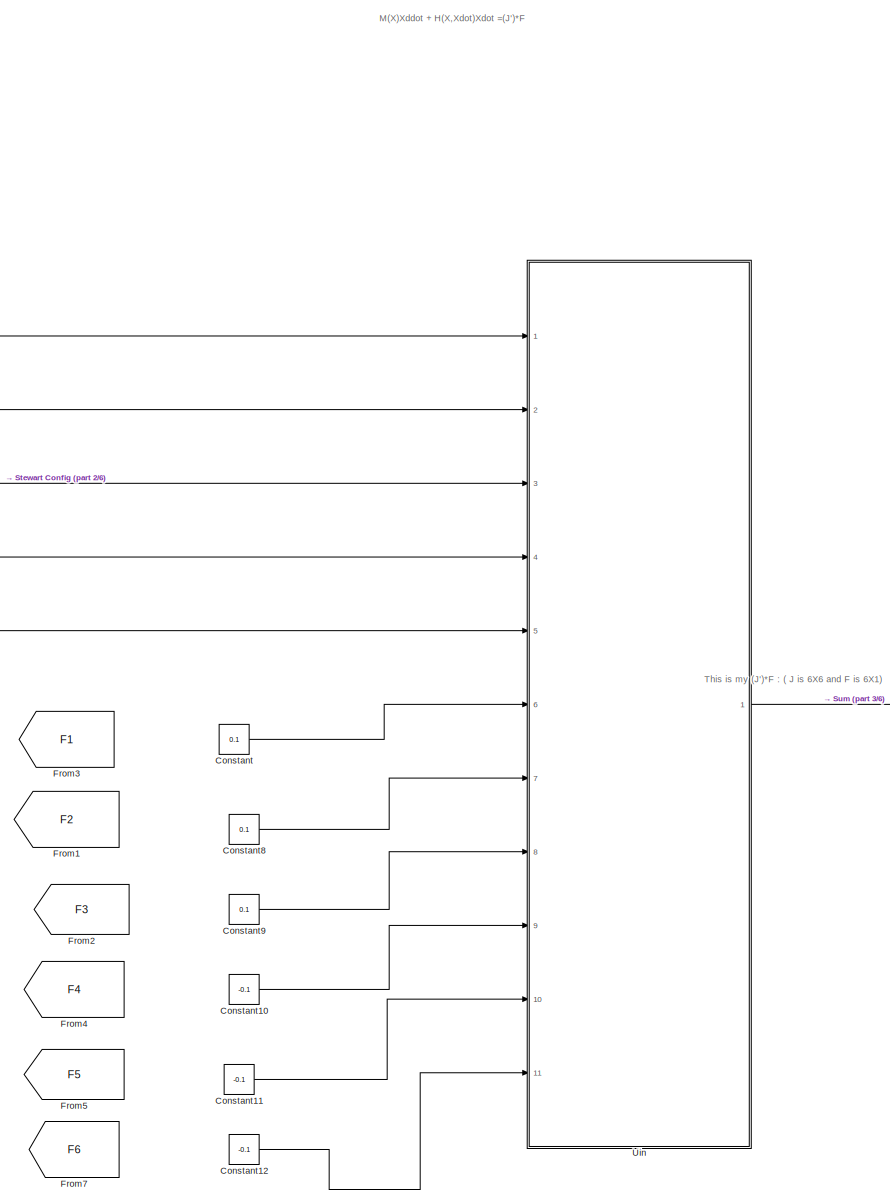
[diagram: root canvas - part 1/6, top center region]
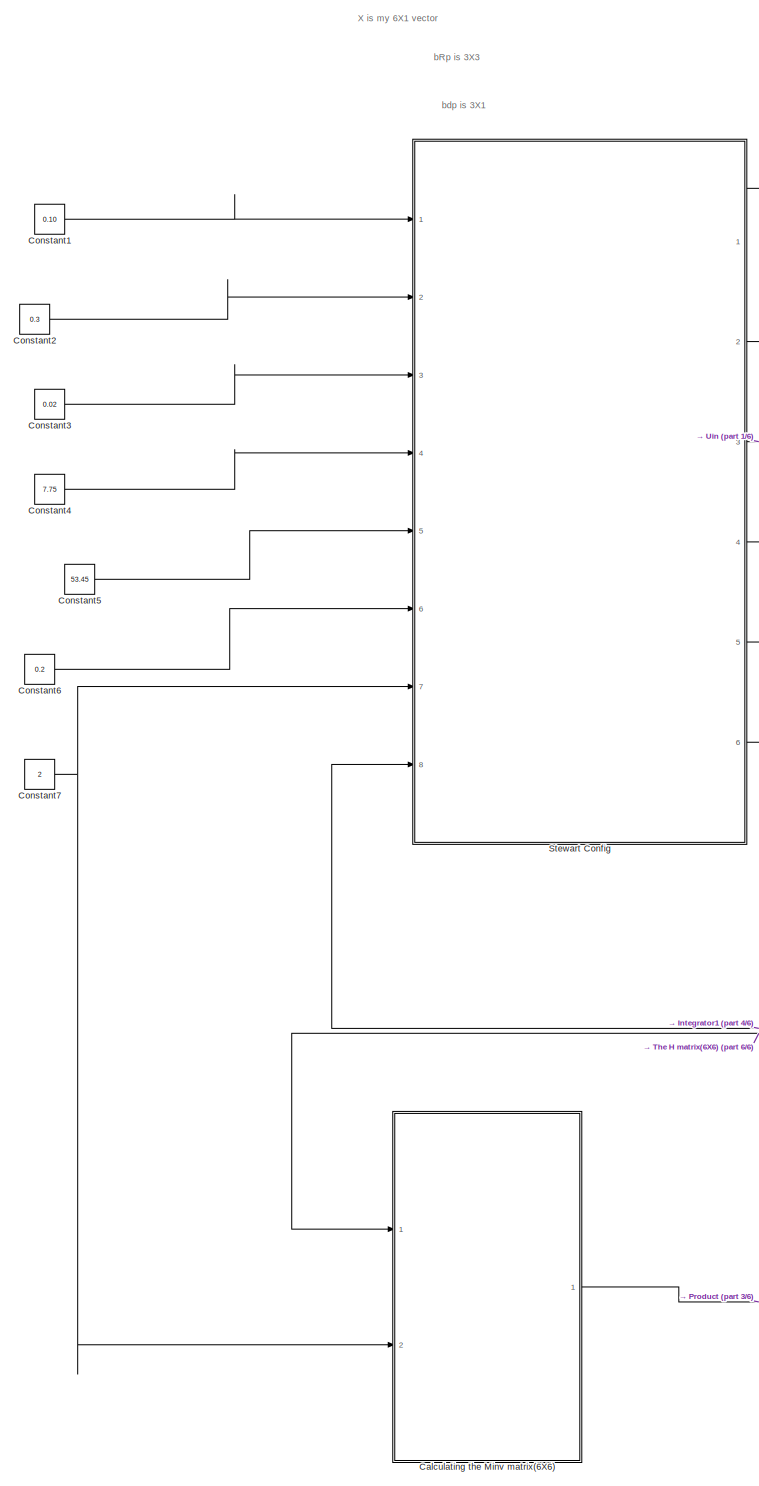
[diagram: root canvas - part 2/6, middle left region]
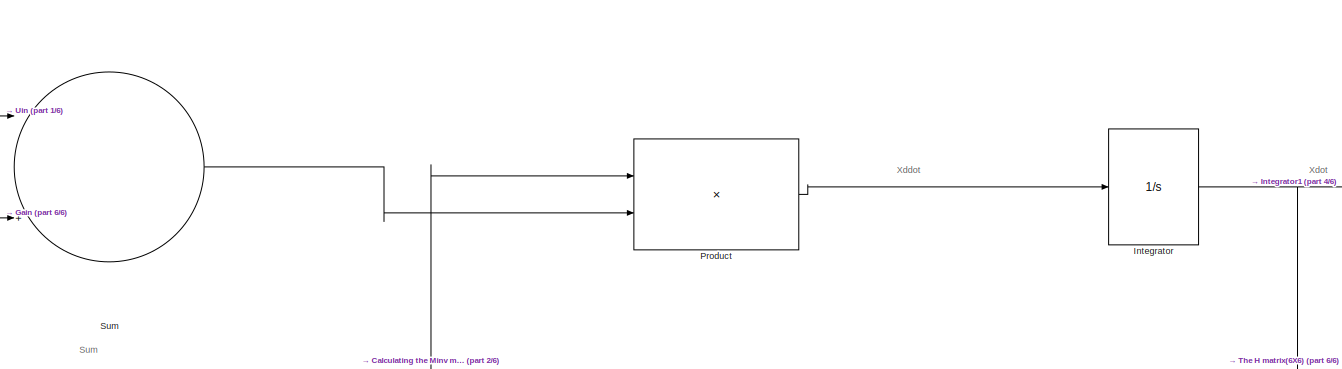
[diagram: root canvas - part 3/6, top right region]
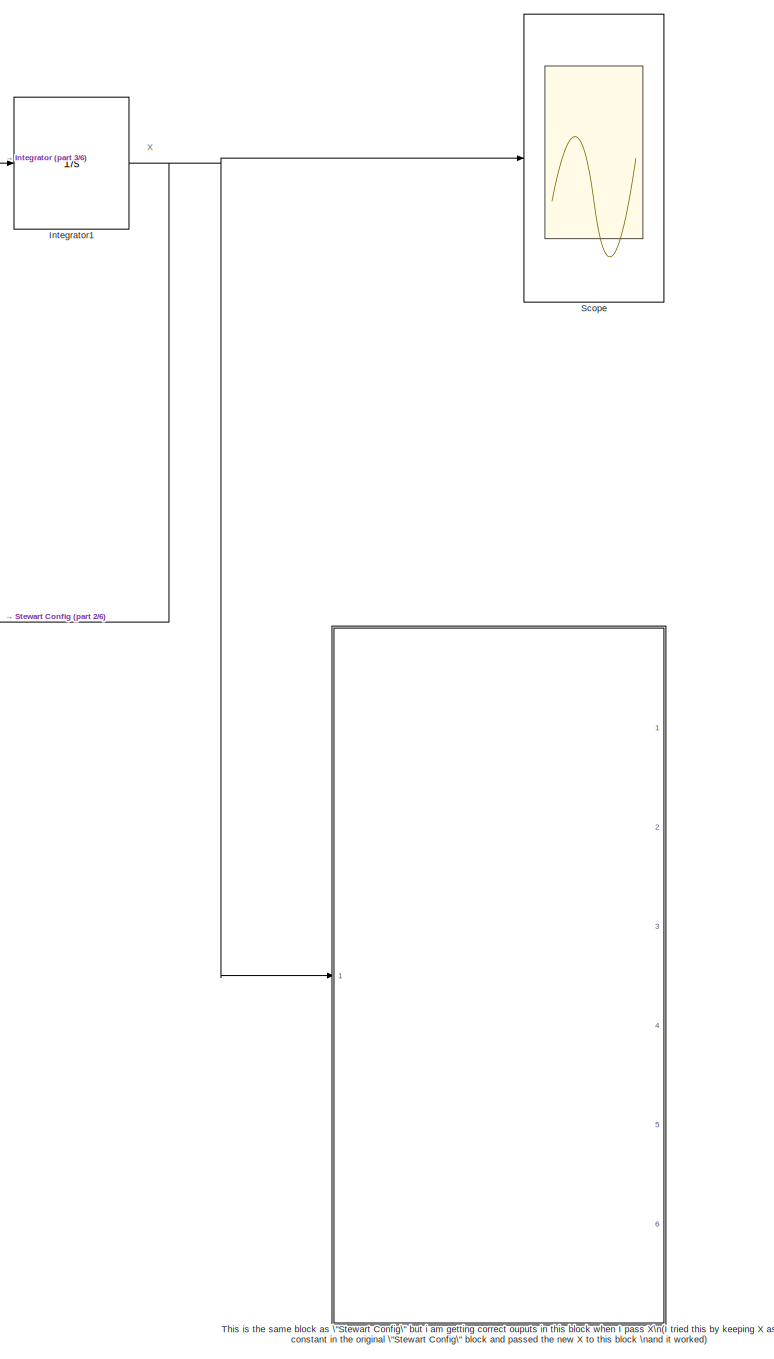
[diagram: root canvas - part 4/6, middle right region]
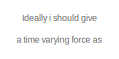
[diagram: root canvas - part 5/6, top left region]
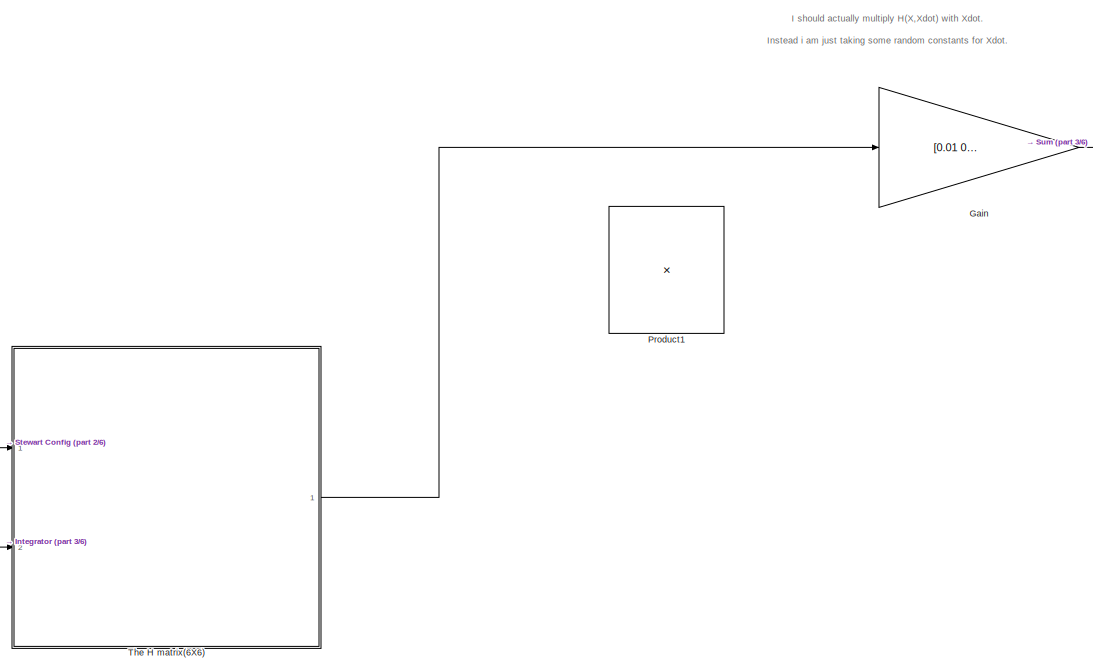
[diagram: root canvas - part 6/6, bottom center region]
MODEL SPDynamicsSreeranj
KIND model
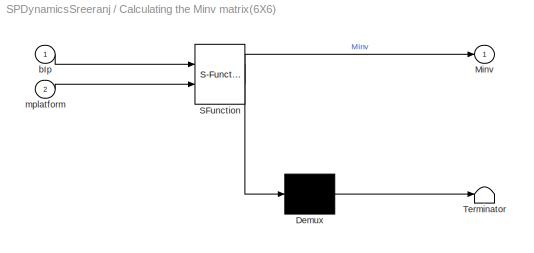
BLOCK [SubSystem] Calculating the Minv  matrix(6X6)
  ErrorFcn = Stateflow.Translate.translate
  PermitHierarchicalResolution = ExplicitOnly
  Ports = [2, 1]
  RequestExecContextInheritance = off
  SFBlockType = MATLAB Function
  SID = 1
  TreatAsAtomicUnit = on
BLOCK [Demux] Calculating the Minv  matrix(6X6)/ Demux 
  Outputs = 1
  Ports = [1, 1]
  SID = 1::17
BLOCK [S-Function] Calculating the Minv  matrix(6X6)/ SFunction 
  EnableBusSupport = on
  FunctionName = sf_sfun
  PortCounts = [2 2]
  Ports = [2, 2]
  SID = 1::16
  Tag = Stateflow S-Function SPDynamicsSreeranj 4
BLOCK [Terminator] Calculating the Minv  matrix(6X6)/ Terminator 
  SID = 1::18
BLOCK [Outport] Calculating the Minv  matrix(6X6)/Minv
  IconDisplay = Port number
  SID = 1::5
BLOCK [Inport] Calculating the Minv  matrix(6X6)/bIp
  IconDisplay = Port number
  SID = 1::19
BLOCK [Inport] Calculating the Minv  matrix(6X6)/mplatform
  IconDisplay = Port number
  Port = 2
  SID = 1::1
BLOCK [Constant] Constant
  SID = 2
  Value = 0.1
BLOCK [Constant] Constant1
  SID = 3
  Value = 0.10
BLOCK [Constant] Constant10
  SID = 4
  Value = -0.1
BLOCK [Constant] Constant11
  SID = 5
  Value = -0.1
BLOCK [Constant] Constant12
  SID = 6
  Value = -0.1
BLOCK [Constant] Constant2
  SID = 7
  Value = 0.3
BLOCK [Constant] Constant3
  SID = 8
  Value = 0.02
BLOCK [Constant] Constant4
  SID = 9
  Value = 7.75
BLOCK [Constant] Constant5
  SID = 10
  Value = 53.45
BLOCK [Constant] Constant6
  SID = 11
  Value = 0.2
BLOCK [Constant] Constant7
  SID = 12
  Value = 2
BLOCK [Constant] Constant8
  SID = 13
  Value = 0.1
BLOCK [Constant] Constant9
  SID = 14
  Value = 0.1
BLOCK [From] From1
  CloseFcn = tagdialog Close
  GotoTag = F2
  SID = 35
BLOCK [From] From2
  CloseFcn = tagdialog Close
  GotoTag = F3
  SID = 36
BLOCK [From] From3
  CloseFcn = tagdialog Close
  GotoTag = F1
  SID = 37
BLOCK [From] From4
  CloseFcn = tagdialog Close
  GotoTag = F4
  SID = 38
BLOCK [From] From5
  CloseFcn = tagdialog Close
  GotoTag = F5
  SID = 39
BLOCK [From] From7
  CloseFcn = tagdialog Close
  GotoTag = F6
  SID = 40
BLOCK [Gain] Gain
  Gain = [0.01 0.00 0 0.1 0.05 0.15]'
  Multiplication = Matrix(u*K)
  OutDataTypeStr = Inherit: Inherit via internal rule
  ParamDataTypeStr = Inherit: Inherit via internal rule
  SID = 41
  SaturateOnIntegerOverflow = off
BLOCK [Integrator] Integrator
  Ports = [1, 1]
  SID = 42
BLOCK [Integrator] Integrator1
  Ports = [1, 1]
  SID = 43
BLOCK [Product] Product
  InputSameDT = off
  Multiplication = Matrix(*)
  OutDataTypeStr = Inherit: Inherit via internal rule
  Ports = [2, 1]
  RndMeth = Floor
  SID = 45
  SaturateOnIntegerOverflow = off
BLOCK [Product] Product1
  InputSameDT = off
  Multiplication = Matrix(*)
  OutDataTypeStr = Inherit: Inherit via internal rule
  Ports = [2, 1]
  RndMeth = Floor
  SID = 46
  SaturateOnIntegerOverflow = off
BLOCK [Scope] Scope
  Floating = off
  NumInputPorts = 1
  Ports = [1]
  SID = 173
  ShowLegends = off
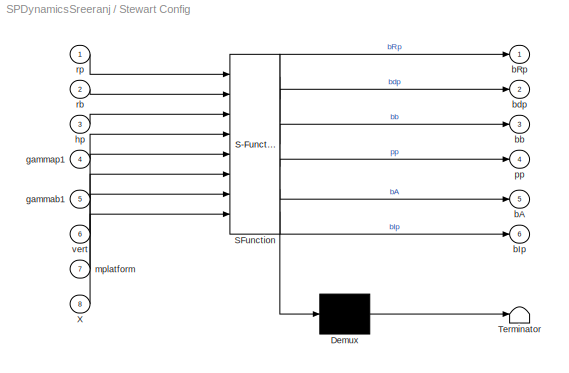
BLOCK [SubSystem] Stewart Config
  ErrorFcn = Stateflow.Translate.translate
  PermitHierarchicalResolution = ExplicitOnly
  Ports = [8, 6]
  RequestExecContextInheritance = off
  SFBlockType = MATLAB Function
  SID = 52
  TreatAsAtomicUnit = on
BLOCK [Demux] Stewart Config/ Demux 
  Outputs = 1
  Ports = [1, 1]
  SID = 52::17
BLOCK [S-Function] Stewart Config/ SFunction 
  EnableBusSupport = on
  FunctionName = sf_sfun
  PortCounts = [8 7]
  Ports = [8, 7]
  SID = 52::16
  Tag = Stateflow S-Function SPDynamicsSreeranj 1
BLOCK [Terminator] Stewart Config/ Terminator 
  SID = 52::18
BLOCK [Inport] Stewart Config/X
  IconDisplay = Port number
  Port = 8
  SID = 52::41
BLOCK [Outport] Stewart Config/bA
  IconDisplay = Port number
  Port = 5
  SID = 52::28
BLOCK [Outport] Stewart Config/bIp
  IconDisplay = Port number
  Port = 6
  SID = 52::30
BLOCK [Outport] Stewart Config/bRp
  IconDisplay = Port number
  SID = 52::5
BLOCK [Outport] Stewart Config/bb
  IconDisplay = Port number
  Port = 3
  SID = 52::26
BLOCK [Outport] Stewart Config/bdp
  IconDisplay = Port number
  Port = 2
  SID = 52::25
BLOCK [Inport] Stewart Config/gammab1
  IconDisplay = Port number
  Port = 5
  SID = 52::22
BLOCK [Inport] Stewart Config/gammap1
  IconDisplay = Port number
  Port = 4
  SID = 52::21
BLOCK [Inport] Stewart Config/hp
  IconDisplay = Port number
  Port = 3
  SID = 52::20
BLOCK [Inport] Stewart Config/mplatform
  IconDisplay = Port number
  Port = 7
  SID = 52::29
BLOCK [Outport] Stewart Config/pp
  IconDisplay = Port number
  Port = 4
  SID = 52::27
BLOCK [Inport] Stewart Config/rb
  IconDisplay = Port number
  Port = 2
  SID = 52::19
BLOCK [Inport] Stewart Config/rp
  IconDisplay = Port number
  SID = 52::1
BLOCK [Inport] Stewart Config/vert
  IconDisplay = Port number
  Port = 6
  SID = 52::23
BLOCK [Sum] Sum
  InputSameDT = off
  Inputs = |++
  OutDataTypeStr = Inherit: Inherit via internal rule
  Ports = [2, 1]
  SID = 53
  SaturateOnIntegerOverflow = off
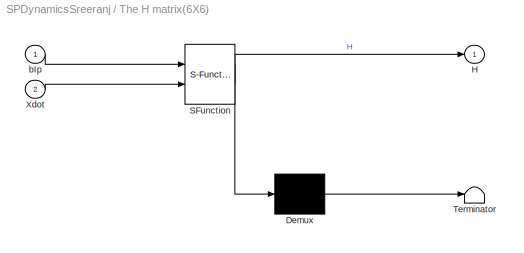
BLOCK [SubSystem] The H matrix(6X6)
  ErrorFcn = Stateflow.Translate.translate
  PermitHierarchicalResolution = ExplicitOnly
  Ports = [2, 1]
  RequestExecContextInheritance = off
  SFBlockType = MATLAB Function
  SID = 54
  TreatAsAtomicUnit = on
BLOCK [Demux] The H matrix(6X6)/ Demux 
  Outputs = 1
  Ports = [1, 1]
  SID = 54::17
BLOCK [S-Function] The H matrix(6X6)/ SFunction 
  EnableBusSupport = on
  FunctionName = sf_sfun
  PortCounts = [2 2]
  Ports = [2, 2]
  SID = 54::16
  Tag = Stateflow S-Function SPDynamicsSreeranj 5
BLOCK [Terminator] The H matrix(6X6)/ Terminator 
  SID = 54::18
BLOCK [Outport] The H matrix(6X6)/H
  IconDisplay = Port number
  SID = 54::5
BLOCK [Inport] The H matrix(6X6)/Xdot
  IconDisplay = Port number
  Port = 2
  SID = 54::27
BLOCK [Inport] The H matrix(6X6)/bIp
  IconDisplay = Port number
  SID = 54::1
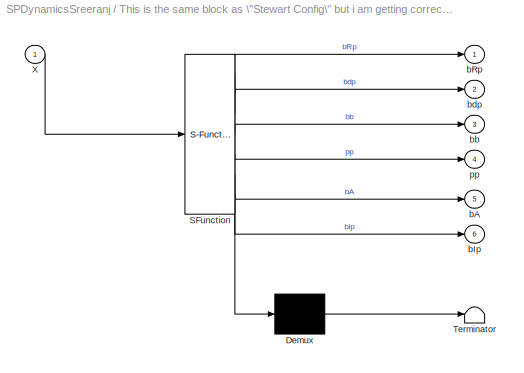
BLOCK [SubSystem] This is the same block as \"Stewart Config\" but i am getting correct ouputs in this block when I pass X\n(I tried this by keeping X as constant in the original \"Stewart Config\" block and passed the new X to this block \nand it worked)
  ErrorFcn = Stateflow.Translate.translate
  PermitHierarchicalResolution = ExplicitOnly
  Ports = [1, 6]
  RequestExecContextInheritance = off
  SFBlockType = MATLAB Function
  SID = 47
  TreatAsAtomicUnit = on
BLOCK [Demux] This is the same block as \"Stewart Config\" but i am getting correct ouputs in this block when I pass X\n(I tried this by keeping X as constant in the original \"Stewart Config\" block and passed the new X to this block \nand it worked)/ Demux 
  Outputs = 1
  Ports = [1, 1]
  SID = 47::17
BLOCK [S-Function] This is the same block as \"Stewart Config\" but i am getting correct ouputs in this block when I pass X\n(I tried this by keeping X as constant in the original \"Stewart Config\" block and passed the new X to this block \nand it worked)/ SFunction 
  EnableBusSupport = on
  FunctionName = sf_sfun
  PortCounts = [1 7]
  Ports = [1, 7]
  SID = 47::16
  Tag = Stateflow S-Function SPDynamicsSreeranj 8
BLOCK [Terminator] This is the same block as \"Stewart Config\" but i am getting correct ouputs in this block when I pass X\n(I tried this by keeping X as constant in the original \"Stewart Config\" block and passed the new X to this block \nand it worked)/ Terminator 
  SID = 47::18
BLOCK [Inport] This is the same block as \"Stewart Config\" but i am getting correct ouputs in this block when I pass X\n(I tried this by keeping X as constant in the original \"Stewart Config\" block and passed the new X to this block \nand it worked)/X
  IconDisplay = Port number
  SID = 47::37
BLOCK [Outport] This is the same block as \"Stewart Config\" but i am getting correct ouputs in this block when I pass X\n(I tried this by keeping X as constant in the original \"Stewart Config\" block and passed the new X to this block \nand it worked)/bA
  IconDisplay = Port number
  Port = 5
  SID = 47::28
BLOCK [Outport] This is the same block as \"Stewart Config\" but i am getting correct ouputs in this block when I pass X\n(I tried this by keeping X as constant in the original \"Stewart Config\" block and passed the new X to this block \nand it worked)/bIp
  IconDisplay = Port number
  Port = 6
  SID = 47::30
BLOCK [Outport] This is the same block as \"Stewart Config\" but i am getting correct ouputs in this block when I pass X\n(I tried this by keeping X as constant in the original \"Stewart Config\" block and passed the new X to this block \nand it worked)/bRp
  IconDisplay = Port number
  SID = 47::5
BLOCK [Outport] This is the same block as \"Stewart Config\" but i am getting correct ouputs in this block when I pass X\n(I tried this by keeping X as constant in the original \"Stewart Config\" block and passed the new X to this block \nand it worked)/bb
  IconDisplay = Port number
  Port = 3
  SID = 47::26
BLOCK [Outport] This is the same block as \"Stewart Config\" but i am getting correct ouputs in this block when I pass X\n(I tried this by keeping X as constant in the original \"Stewart Config\" block and passed the new X to this block \nand it worked)/bdp
  IconDisplay = Port number
  Port = 2
  SID = 47::25
BLOCK [Outport] This is the same block as \"Stewart Config\" but i am getting correct ouputs in this block when I pass X\n(I tried this by keeping X as constant in the original \"Stewart Config\" block and passed the new X to this block \nand it worked)/pp
  IconDisplay = Port number
  Port = 4
  SID = 47::27
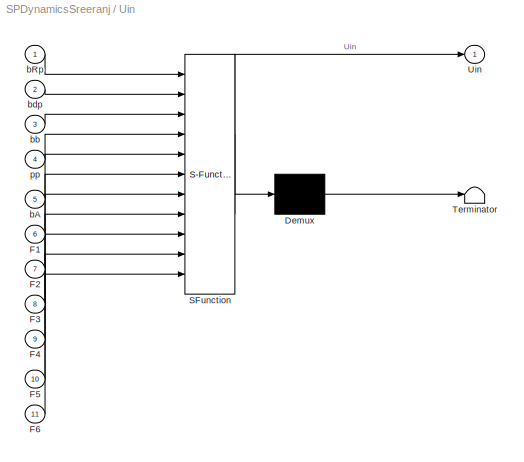
BLOCK [SubSystem] Uin
  ErrorFcn = Stateflow.Translate.translate
  PermitHierarchicalResolution = ExplicitOnly
  Ports = [11, 1]
  RequestExecContextInheritance = off
  SFBlockType = MATLAB Function
  SID = 55
  TreatAsAtomicUnit = on
BLOCK [Demux] Uin/ Demux 
  Outputs = 1
  Ports = [1, 1]
  SID = 55::17
BLOCK [S-Function] Uin/ SFunction 
  EnableBusSupport = on
  FunctionName = sf_sfun
  PortCounts = [11 2]
  Ports = [11, 2]
  SID = 55::16
  Tag = Stateflow S-Function SPDynamicsSreeranj 3
BLOCK [Terminator] Uin/ Terminator 
  SID = 55::18
BLOCK [Inport] Uin/F1
  IconDisplay = Port number
  Port = 6
  SID = 55::23
BLOCK [Inport] Uin/F2
  IconDisplay = Port number
  Port = 7
  SID = 55::24
BLOCK [Inport] Uin/F3
  IconDisplay = Port number
  Port = 8
  SID = 55::25
BLOCK [Inport] Uin/F4
  IconDisplay = Port number
  Port = 9
  SID = 55::26
BLOCK [Inport] Uin/F5
  IconDisplay = Port number
  Port = 10
  SID = 55::27
BLOCK [Inport] Uin/F6
  IconDisplay = Port number
  Port = 11
  SID = 55::28
BLOCK [Outport] Uin/Uin
  IconDisplay = Port number
  SID = 55::5
BLOCK [Inport] Uin/bA
  IconDisplay = Port number
  Port = 5
  SID = 55::22
BLOCK [Inport] Uin/bRp
  IconDisplay = Port number
  SID = 55::1
BLOCK [Inport] Uin/bb
  IconDisplay = Port number
  Port = 3
  SID = 55::20
BLOCK [Inport] Uin/bdp
  IconDisplay = Port number
  Port = 2
  SID = 55::21
BLOCK [Inport] Uin/pp
  IconDisplay = Port number
  Port = 4
  SID = 55::19
ANNOTATION (root): \n \n Ideally i should give \n a time varying force as \n input. I just kept it as a \n constant(0.1N) for the time \n being
ANNOTATION (root): \n \n I should actually multiply H(X,Xdot) with Xdot. \n Instead i am just taking some random constants for Xdot. \n I dont know if just giving a feedback from Xdot is going to work here.
ANNOTATION (root): \n \n M(X)Xddot + H(X,Xdot)Xdot =(J')*F
ANNOTATION (root): \n \n Sum
ANNOTATION (root): \n \n This is my (J')*F : ( J is 6X6 and F is 6X1)
ANNOTATION (root): \n \n X is my 6X1 vector
ANNOTATION (root): \n \n X
ANNOTATION (root): \n \n Xddot
ANNOTATION (root): \n \n Xdot
ANNOTATION (root): \n \n bRp is 3X3
ANNOTATION (root): \n \n bdp is 3X1
ANNOTATION (root): \n \n
LINE Calculating the Minv  matrix(6X6)/ Demux :1 -> Calculating the Minv  matrix(6X6)/ Terminator :1
LINE Calculating the Minv  matrix(6X6)/ SFunction :1 -> Calculating the Minv  matrix(6X6)/ Demux :1
LINE Calculating the Minv  matrix(6X6)/ SFunction :2 -> Calculating the Minv  matrix(6X6)/Minv:1
LINE Calculating the Minv  matrix(6X6)/bIp:1 -> Calculating the Minv  matrix(6X6)/ SFunction :1
LINE Calculating the Minv  matrix(6X6)/mplatform:1 -> Calculating the Minv  matrix(6X6)/ SFunction :2
LINE Calculating the Minv  matrix(6X6):1 -> Product:1
LINE Constant10:1 -> Uin:9
LINE Constant11:1 -> Uin:10
LINE Constant12:1 -> Uin:11
LINE Constant1:1 -> Stewart Config:1
LINE Constant2:1 -> Stewart Config:2
LINE Constant3:1 -> Stewart Config:3
LINE Constant4:1 -> Stewart Config:4
LINE Constant5:1 -> Stewart Config:5
LINE Constant6:1 -> Stewart Config:6
NET Constant7:1 -> Calculating the Minv  matrix(6X6):2, Stewart Config:7
LINE Constant8:1 -> Uin:7
LINE Constant9:1 -> Uin:8
LINE Constant:1 -> Uin:6
LINE Gain:1 -> Sum:2
NET Integrator1:1 -> Scope:1, Stewart Config:8, This is the same block as \"Stewart Config\" but i am getting correct ouputs in this block when I pass X\n(I tried this by keeping X as constant in the original \"Stewart Config\" block and passed the new X to this block \nand it worked):1
NET Integrator:1 -> Integrator1:1, The H matrix(6X6):2
LINE Product:1 -> Integrator:1
LINE Stewart Config/ Demux :1 -> Stewart Config/ Terminator :1
LINE Stewart Config/ SFunction :1 -> Stewart Config/ Demux :1
LINE Stewart Config/ SFunction :2 -> Stewart Config/bRp:1
LINE Stewart Config/ SFunction :3 -> Stewart Config/bdp:1
LINE Stewart Config/ SFunction :4 -> Stewart Config/bb:1
LINE Stewart Config/ SFunction :5 -> Stewart Config/pp:1
LINE Stewart Config/ SFunction :6 -> Stewart Config/bA:1
LINE Stewart Config/ SFunction :7 -> Stewart Config/bIp:1
LINE Stewart Config/X:1 -> Stewart Config/ SFunction :8
LINE Stewart Config/gammab1:1 -> Stewart Config/ SFunction :5
LINE Stewart Config/gammap1:1 -> Stewart Config/ SFunction :4
LINE Stewart Config/hp:1 -> Stewart Config/ SFunction :3
LINE Stewart Config/mplatform:1 -> Stewart Config/ SFunction :7
LINE Stewart Config/rb:1 -> Stewart Config/ SFunction :2
LINE Stewart Config/rp:1 -> Stewart Config/ SFunction :1
LINE Stewart Config/vert:1 -> Stewart Config/ SFunction :6
LINE Stewart Config:1 -> Uin:1
LINE Stewart Config:2 -> Uin:2
LINE Stewart Config:3 -> Uin:3
LINE Stewart Config:4 -> Uin:4
LINE Stewart Config:5 -> Uin:5
NET Stewart Config:6 -> Calculating the Minv  matrix(6X6):1, The H matrix(6X6):1
LINE Sum:1 -> Product:2
LINE The H matrix(6X6)/ Demux :1 -> The H matrix(6X6)/ Terminator :1
LINE The H matrix(6X6)/ SFunction :1 -> The H matrix(6X6)/ Demux :1
LINE The H matrix(6X6)/ SFunction :2 -> The H matrix(6X6)/H:1
LINE The H matrix(6X6)/Xdot:1 -> The H matrix(6X6)/ SFunction :2
LINE The H matrix(6X6)/bIp:1 -> The H matrix(6X6)/ SFunction :1
LINE The H matrix(6X6):1 -> Gain:1
LINE This is the same block as \"Stewart Config\" but i am getting correct ouputs in this block when I pass X\n(I tried this by keeping X as constant in the original \"Stewart Config\" block and passed the new X to this block \nand it worked)/ Demux :1 -> This is the same block as \"Stewart Config\" but i am getting correct ouputs in this block when I pass X\n(I tried this by keeping X as constant in the original \"Stewart Config\" block and passed the new X to this block \nand it worked)/ Terminator :1
LINE This is the same block as \"Stewart Config\" but i am getting correct ouputs in this block when I pass X\n(I tried this by keeping X as constant in the original \"Stewart Config\" block and passed the new X to this block \nand it worked)/ SFunction :1 -> This is the same block as \"Stewart Config\" but i am getting correct ouputs in this block when I pass X\n(I tried this by keeping X as constant in the original \"Stewart Config\" block and passed the new X to this block \nand it worked)/ Demux :1
LINE This is the same block as \"Stewart Config\" but i am getting correct ouputs in this block when I pass X\n(I tried this by keeping X as constant in the original \"Stewart Config\" block and passed the new X to this block \nand it worked)/ SFunction :2 -> This is the same block as \"Stewart Config\" but i am getting correct ouputs in this block when I pass X\n(I tried this by keeping X as constant in the original \"Stewart Config\" block and passed the new X to this block \nand it worked)/bRp:1
LINE This is the same block as \"Stewart Config\" but i am getting correct ouputs in this block when I pass X\n(I tried this by keeping X as constant in the original \"Stewart Config\" block and passed the new X to this block \nand it worked)/ SFunction :3 -> This is the same block as \"Stewart Config\" but i am getting correct ouputs in this block when I pass X\n(I tried this by keeping X as constant in the original \"Stewart Config\" block and passed the new X to this block \nand it worked)/bdp:1
LINE This is the same block as \"Stewart Config\" but i am getting correct ouputs in this block when I pass X\n(I tried this by keeping X as constant in the original \"Stewart Config\" block and passed the new X to this block \nand it worked)/ SFunction :4 -> This is the same block as \"Stewart Config\" but i am getting correct ouputs in this block when I pass X\n(I tried this by keeping X as constant in the original \"Stewart Config\" block and passed the new X to this block \nand it worked)/bb:1
LINE This is the same block as \"Stewart Config\" but i am getting correct ouputs in this block when I pass X\n(I tried this by keeping X as constant in the original \"Stewart Config\" block and passed the new X to this block \nand it worked)/ SFunction :5 -> This is the same block as \"Stewart Config\" but i am getting correct ouputs in this block when I pass X\n(I tried this by keeping X as constant in the original \"Stewart Config\" block and passed the new X to this block \nand it worked)/pp:1
LINE This is the same block as \"Stewart Config\" but i am getting correct ouputs in this block when I pass X\n(I tried this by keeping X as constant in the original \"Stewart Config\" block and passed the new X to this block \nand it worked)/ SFunction :6 -> This is the same block as \"Stewart Config\" but i am getting correct ouputs in this block when I pass X\n(I tried this by keeping X as constant in the original \"Stewart Config\" block and passed the new X to this block \nand it worked)/bA:1
LINE This is the same block as \"Stewart Config\" but i am getting correct ouputs in this block when I pass X\n(I tried this by keeping X as constant in the original \"Stewart Config\" block and passed the new X to this block \nand it worked)/ SFunction :7 -> This is the same block as \"Stewart Config\" but i am getting correct ouputs in this block when I pass X\n(I tried this by keeping X as constant in the original \"Stewart Config\" block and passed the new X to this block \nand it worked)/bIp:1
LINE This is the same block as \"Stewart Config\" but i am getting correct ouputs in this block when I pass X\n(I tried this by keeping X as constant in the original \"Stewart Config\" block and passed the new X to this block \nand it worked)/X:1 -> This is the same block as \"Stewart Config\" but i am getting correct ouputs in this block when I pass X\n(I tried this by keeping X as constant in the original \"Stewart Config\" block and passed the new X to this block \nand it worked)/ SFunction :1
LINE Uin/ Demux :1 -> Uin/ Terminator :1
LINE Uin/ SFunction :1 -> Uin/ Demux :1
LINE Uin/ SFunction :2 -> Uin/Uin:1
LINE Uin/F1:1 -> Uin/ SFunction :6
LINE Uin/F2:1 -> Uin/ SFunction :7
LINE Uin/F3:1 -> Uin/ SFunction :8
LINE Uin/F4:1 -> Uin/ SFunction :9
LINE Uin/F5:1 -> Uin/ SFunction :10
LINE Uin/F6:1 -> Uin/ SFunction :11
LINE Uin/bA:1 -> Uin/ SFunction :5
LINE Uin/bRp:1 -> Uin/ SFunction :1
LINE Uin/bb:1 -> Uin/ SFunction :3
LINE Uin/bdp:1 -> Uin/ SFunction :2
LINE Uin/pp:1 -> Uin/ SFunction :4
LINE Uin:1 -> Sum:1
note: NET lines group one-source signal fan-out (src -> all destinations, sorted); 1:1 wires keep LINE
CHART Stewart Config states=1 transitions=1
  STATE_LABEL 'eML_blk_kernel()'
CHART Uin states=1 transitions=1
  STATE_LABEL 'eML_blk_kernel()'
CHART Calculating the Minv  matrix(6X6) states=1 transitions=1
  STATE_LABEL 'eML_blk_kernel()'
CHART The H matrix(6X6) states=1 transitions=1
  STATE_LABEL 'eML_blk_kernel()'
CHART This is the same block as \"Stewart Config\" but i am getting correct ouputs in this block when I pass X\n(I tried this by keeping X as constant in the original \"Stewart Config\" block and passed the new X to this block \nand it worked) states=1 transitions=1
  STATE_LABEL 'eML_blk_kernel()'
